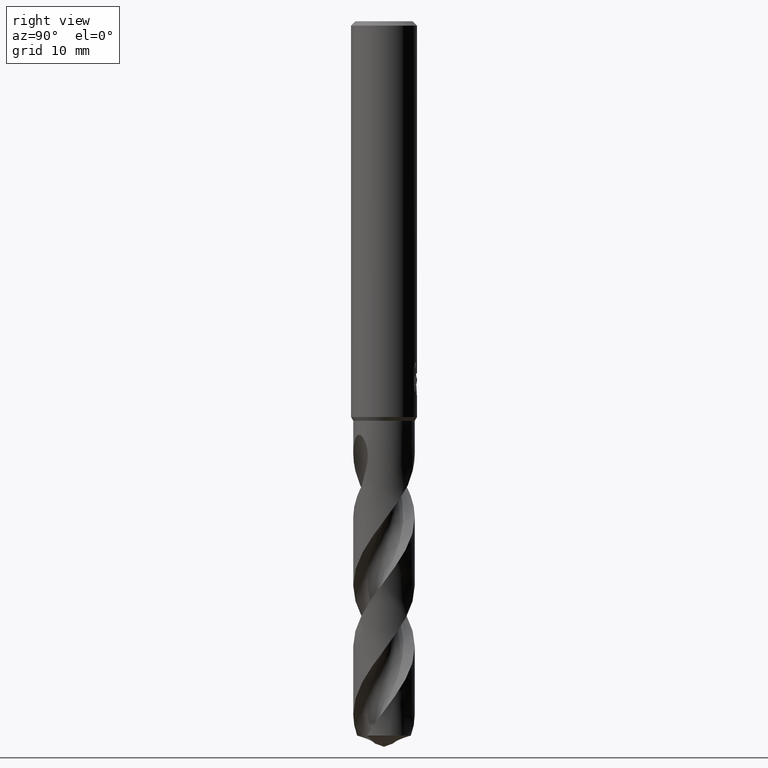
[diagram: clean part render]
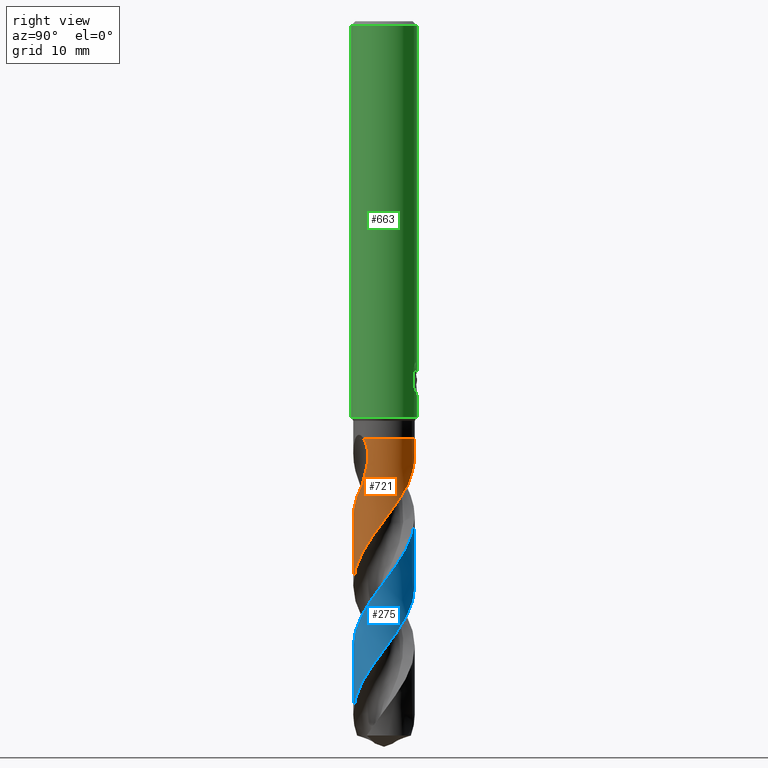
[diagram: same view with three faces highlighted in distinct colors, each labeled with its STEP entity id]
A machine part, right view with three faces highlighted in distinct colors.
Their STEP definitions:

[orange] entity #721 — the highlighted conical surface has half-angle 0 deg.
#277=EDGE_CURVE('',#655,#307,#769,.T.);
#285=EDGE_CURVE('',#645,#655,#778,.T.);
#307=VERTEX_POINT('',#803);
#323=EDGE_CURVE('',#709,#363,#820,.T.);
#329=EDGE_CURVE('',#385,#631,#826,.T.);
#363=VERTEX_POINT('',#863);
#385=VERTEX_POINT('',#886);
#399=EDGE_CURVE('',#645,#363,#900,.T.);
#563=EDGE_CURVE('',#623,#709,#1080,.T.);
#573=EDGE_CURVE('',#307,#385,#1090,.T.);
#623=VERTEX_POINT('',#1145);
#631=VERTEX_POINT('',#1153);
#645=VERTEX_POINT('',#1167);
#655=VERTEX_POINT('',#1179);
#709=VERTEX_POINT('',#1240);
#721=ADVANCED_FACE('',(#1252),#1253,.T.);
#731=EDGE_CURVE('',#623,#631,#1264,.T.);
#769=B_SPLINE_CURVE_WITH_KNOTS('',3,(#1301,#1302,#1303,#1304,#1305,#1306,#1307,#1308),.UNSPECIFIED.,.F.,.F.,(4,2,2,4),(0.0,0.523321271430247,1.25566666996262,1.95649381543812),.UNSPECIFIED.);
#778=CIRCLE('',#1318,2.7999);
#803=CARTESIAN_POINT('',(2.2781119323004,-1.62779058423102,-40.7055131651213));
#820=B_SPLINE_CURVE_WITH_KNOTS('',3,(#1708,#1709,#1710,#1711,#1712,#1713,#1714,#1715,#1716,#1717,#1718,#1719,#1720,#1721),.UNSPECIFIED.,.F.,.F.,(4,2,2,2,2,2,4),(0.0,1.37185301931194,2.12090821065314,2.79935299690903,3.5875249843323,4.5342877244059,5.02417059962225),.UNSPECIFIED.);
#826=B_SPLINE_CURVE_WITH_KNOTS('',3,(#1728,#1729,#1730,#1731,#1732,#1733,#1734,#1735,#1736,#1737,#1738,#1739,#1740,#1741,#1742,#1743,#1744,#1745,#1746,#1747,#1748,#1749,#1750,#1751,#1752,#1753,#1754,#1755,#1756,#1757,#1758,#1759,#1760,#1761,#1762,#1763,#1764,#1765,#1766,#1767,#1768,#1769,#1770,#1771,#1772,#1773,#1774,#1775,#1776,#1777,#1778,#1779,#1780,#1781,#1782,#1783,#1784,#1785,#1786,#1787,#1788,#1789,#1790,#1791,#1792,#1793,#1794,#1795,#1796,#1797,#1798,#1799,#1800,#1801,#1802,#1803,#1804,#1805,#1806,#1807,#1808,#1809,#1810,#1811,#1812,#1813,#1814,#1815,#1816,#1817),.UNSPECIFIED.,.F.,.F.,(4,2,2,2,2,2,2,2,2,2,2,2,2,2,2,2,2,2,2,2,2,2,2,2,2,2,2,2,2,2,2,2,2,2,2,2,2,2,2,2,2,2,2,2,4),(0.0,0.108605759986239,0.168578979739064,0.211160721604494,0.513169224595069,0.618894623301516,0.686603574989269,0.750219645952928,0.835518369713695,0.885920160520182,1.02793390304412,1.35076908823656,1.59321563300854,1.82495748943316,1.9034848697878,2.34429767808718,3.12889301506507,5.51420416707672,5.60708854209568,6.65786965747591,7.03557386916732,7.75399572533773,9.16973361643464,9.36560392717781,10.9338929152472,11.3227073045956,12.5126224510856,13.2591913323775,14.6203091368013,15.0089661644953,16.1840633114926,16.9317899623918,18.2450687058968,18.6334545419206,20.202687370743,20.5911594586501,21.8381506581313,22.5779268841073,23.9762839749945,24.1716940337371,25.7413264346314,26.0592280904307,27.1782367344266,27.4589535036891,28.3009484968989),.UNSPECIFIED.);
#863=CARTESIAN_POINT('',(-8.29063162622324E-013,2.79990467838806,-39.2622704252127));
#886=CARTESIAN_POINT('',(1.94615694925855,-2.01295829811473,-42.2386));
#900=LINE('',#2276,#2277);
#1080=B_SPLINE_CURVE_WITH_KNOTS('',3,(#4415,#4416,#4417,#4418,#4419,#4420,#4421,#4422,#4423,#4424,#4425,#4426,#4427,#4428,#4429,#4430,#4431,#4432,#4433,#4434,#4435,#4436,#4437,#4438,#4439,#4440,#4441,#4442,#4443,#4444,#4445,#4446,#4447,#4448,#4449,#4450,#4451,#4452,#4453,#4454,#4455,#4456,#4457,#4458,#4459,#4460,#4461,#4462,#4463,#4464,#4465,#4466,#4467,#4468,#4469,#4470,#4471,#4472,#4473,#4474,#4475,#4476,#4477,#4478,#4479,#4480,#4481,#4482,#4483,#4484,#4485,#4486,#4487,#4488,#4489,#4490,#4491,#4492,#4493,#4494,#4495,#4496),.UNSPECIFIED.,.F.,.F.,(4,2,2,2,2,2,2,2,2,2,2,2,2,2,2,2,2,2,2,2,2,2,2,2,2,2,2,2,2,2,2,2,2,2,2,2,2,2,2,2,4),(0.0,0.82844719764806,2.40433304094489,2.50812888298905,4.2889600758962,4.38901889776026,6.1355044073233,6.24199106073299,7.89689292066843,8.18196395493552,9.18325673789758,9.89188857279896,9.99353403362321,11.7622142045823,11.864292271473,13.6242220526899,13.7284016362354,15.4270558151816,15.6737218247883,16.6398246399808,17.9490243764252,19.174086388838,19.3921373965643,20.3256583062966,20.7520595840708,21.3315582488114,22.2648227459887,22.6448286538948,22.8899198354149,23.1428124050433,25.6689416338645,25.9265849206089,26.5421271602677,27.1928022753031,27.6356874115801,27.7223129161938,27.7661931254233,27.8168538156707,27.9067499735102,28.0230133345902,28.1271620960893),.UNSPECIFIED.);
#1090=B_SPLINE_CURVE_WITH_KNOTS('',3,(#4519,#4520,#4521,#4522),.UNSPECIFIED.,.F.,.F.,(4,4),(0.0,1.60907456402684),.UNSPECIFIED.);
#1145=CARTESIAN_POINT('',(-3.66239088911917E-010,-2.79994936100804,-51.3180359967202));
#1153=CARTESIAN_POINT('',(1.11412602791118E-011,-2.79992639372894,-45.1212612179477));
#1167=CARTESIAN_POINT('',(-3.41304301446412E-016,2.7999,-38.0));
#1179=CARTESIAN_POINT('',(2.12041942807812,-1.82845876601822,-38.0));
#1240=CARTESIAN_POINT('',(1.78417733937095,2.15783206083594,-42.2386));
#1252=FACE_OUTER_BOUND('',#5075,.T.);
#1253=CONICAL_SURFACE('',#5076,2.79995,3.7063278738718E-006);
#1264=LINE('',#5091,#5092);
#1301=CARTESIAN_POINT('',(2.12041942807811,-1.82845876601822,-38.0));
#1302=CARTESIAN_POINT('',(2.18959193450433,-1.74824186917387,-38.1385996943518));
#1303=CARTESIAN_POINT('',(2.24416314805751,-1.67576563862763,-38.3109060369212));
#1304=CARTESIAN_POINT('',(2.34232905736768,-1.53712938547074,-38.7856447580263));
#1305=CARTESIAN_POINT('',(2.37501983460771,-1.48282339813354,-39.1213398953808));
#1306=CARTESIAN_POINT('',(2.37977723920596,-1.47518073443545,-39.8558690061301));
#1307=CARTESIAN_POINT('',(2.35633024084201,-1.5183203118426,-40.2606386340252));
#1308=CARTESIAN_POINT('',(2.2781119323004,-1.62779058423102,-40.7055131651213));
#1318=AXIS2_PLACEMENT_3D('',#5123,#5124,#5125);
#1708=CARTESIAN_POINT('',(1.78417733937095,2.15783206083595,-42.2386));
#1709=CARTESIAN_POINT('',(1.59948434261327,2.31054135827168,-41.8491422554052));
#1710=CARTESIAN_POINT('',(1.3871265446196,2.44629140471077,-41.4860421016674));
#1711=CARTESIAN_POINT('',(1.01683595365437,2.61268073053257,-40.8794642227573));
#1712=CARTESIAN_POINT('',(0.883588159176526,2.66054451555173,-40.6660514644371));
#1713=CARTESIAN_POINT('',(0.625638243637216,2.73207777887913,-40.2529443056521));
#1714=CARTESIAN_POINT('',(0.502087687644772,2.75735017466428,-40.0551749036506));
#1715=CARTESIAN_POINT('',(0.234655035892083,2.79382365676095,-39.6289356152364));
#1716=CARTESIAN_POINT('',(0.0885386572846875,2.80238646756106,-39.3971290606829));
#1717=CARTESIAN_POINT('',(-0.235947246921476,2.79556015018505,-38.9012226234));
#1718=CARTESIAN_POINT('',(-0.428333702507044,2.77444892399842,-38.6190492548122));
#1719=CARTESIAN_POINT('',(-0.729908568818492,2.70514543693781,-38.2408258814128));
#1720=CARTESIAN_POINT('',(-0.84082868579413,2.67348141227031,-38.1127745381227));
#1721=CARTESIAN_POINT('',(-0.956145090118627,2.63158252324377,-38.0));
#1728=CARTESIAN_POINT('',(1.94615694925855,-2.01295829811473,-42.2386));
#1729=CARTESIAN_POINT('',(1.93125081806019,-2.02736991250831,-42.2682764491579));
#1730=CARTESIAN_POINT('',(1.91614771772562,-2.04165217981694,-42.2979368400302));
#1731=CARTESIAN_POINT('',(1.89233672938128,-2.06366784394802,-42.3439132367299));
#1732=CARTESIAN_POINT('',(1.88380137076256,-2.07146262777551,-42.3602428760747));
#1733=CARTESIAN_POINT('',(1.86907338375561,-2.08474544810152,-42.3881425319075));
#1734=CARTESIAN_POINT('',(1.86292352669241,-2.09024296271859,-42.3997113419267));
#1735=CARTESIAN_POINT('',(1.81283408091538,-2.13462076057181,-42.4932582593985));
#1736=CARTESIAN_POINT('',(1.76788768296892,-2.17203929272721,-42.5729371389503));
#1737=CARTESIAN_POINT('',(1.70356265692424,-2.22212923754118,-42.6814739421968));
#1738=CARTESIAN_POINT('',(1.6866866764584,-2.2349675733049,-42.7094854465578));
#1739=CARTESIAN_POINT('',(1.65862023257109,-2.25581558107512,-42.7554138334336));
#1740=CARTESIAN_POINT('',(1.64758611648696,-2.26388753659054,-42.7733083605951));
#1741=CARTESIAN_POINT('',(1.62602419659507,-2.27941896414609,-42.8080033396172));
#1742=CARTESIAN_POINT('',(1.61551721670922,-2.28687793805828,-42.824786683237));
#1743=CARTESIAN_POINT('',(1.59077206953152,-2.30418844866599,-42.8640716985913));
#1744=CARTESIAN_POINT('',(1.57650170468024,-2.31397566153491,-42.8865424259406));
#1745=CARTESIAN_POINT('',(1.55365097637773,-2.32933797559429,-42.9223164152684));
#1746=CARTESIAN_POINT('',(1.54513632214327,-2.334994773443,-42.9356013555506));
#1747=CARTESIAN_POINT('',(1.51252842888022,-2.35640193515515,-42.9863509401571));
#1748=CARTESIAN_POINT('',(1.48852672606142,-2.37163610381895,-43.0235194279788));
#1749=CARTESIAN_POINT('',(1.40836919371469,-2.42080735754814,-43.1474781941695));
#1750=CARTESIAN_POINT('',(1.35179861928754,-2.45282744293773,-43.2343701104104));
#1751=CARTESIAN_POINT('',(1.25149839991867,-2.50512619686078,-43.3862522387046));
#1752=CARTESIAN_POINT('',(1.20792459292407,-2.52642465666761,-43.4515483187711));
#1753=CARTESIAN_POINT('',(1.12168664080901,-2.56583751229699,-43.5790759546722));
#1754=CARTESIAN_POINT('',(1.07899678872821,-2.5840831546514,-43.6414210989935));
#1755=CARTESIAN_POINT('',(1.02115037672657,-2.60711700280672,-43.7247205252499));
#1756=CARTESIAN_POINT('',(1.00644959524324,-2.61282734338723,-43.7457895332062));
#1757=CARTESIAN_POINT('',(0.909002814661639,-2.64973560215954,-43.8849837500249));
#1758=CARTESIAN_POINT('',(0.824801880823853,-2.67714558883862,-44.0028520185838));
#1759=CARTESIAN_POINT('',(0.58736733484061,-2.7421550852057,-44.3310560038336));
#1760=CARTESIAN_POINT('',(0.432301337753437,-2.77081221551638,-44.5413234848005));
#1761=CARTESIAN_POINT('',(-0.199688037521175,-2.83338947550752,-45.3913537431293));
#1762=CARTESIAN_POINT('',(-0.679749212231005,-2.75797585835273,-46.0194105246137));
#1763=CARTESIAN_POINT('',(-1.13542726907183,-2.55944763849282,-46.6834597726902));
#1764=CARTESIAN_POINT('',(-1.15242881018861,-2.55183768829331,-46.7083433352606));
#1765=CARTESIAN_POINT('',(-1.36083062743651,-2.45604883217945,-47.014873038757));
#1766=CARTESIAN_POINT('',(-1.5418132648444,-2.34667492492432,-47.2962760986244));
#1767=CARTESIAN_POINT('',(-1.76883220591311,-2.17177696534151,-47.6791718317615));
#1768=CARTESIAN_POINT('',(-1.82696917452832,-2.12310466772125,-47.7803394456276));
#1769=CARTESIAN_POINT('',(-1.98978269401807,-1.97514688144761,-48.0740728479555));
#1770=CARTESIAN_POINT('',(-2.08877111872598,-1.87014141333693,-48.2661924021915));
#1771=CARTESIAN_POINT('',(-2.3573949068064,-1.53717184463461,-48.8385579643068));
#1772=CARTESIAN_POINT('',(-2.50109602539604,-1.29032313474208,-49.2159624170112));
#1773=CARTESIAN_POINT('',(-2.61961907730003,-0.989354922738243,-49.6478745346782));
#1774=CARTESIAN_POINT('',(-2.63324692337205,-0.952490222065736,-49.7003493509724));
#1775=CARTESIAN_POINT('',(-2.7489533925757,-0.618012820678946,-50.1733704799265));
#1776=CARTESIAN_POINT('',(-2.80101290869379,-0.305253344627107,-50.5917414706985));
#1777=CARTESIAN_POINT('',(-2.79966361017892,0.0876944981345158,-51.1164180983973));
#1778=CARTESIAN_POINT('',(-2.79613139614853,0.16567230833471,-51.2205786649217));
#1779=CARTESIAN_POINT('',(-2.76860491883403,0.481174608170883,-51.6440978008402));
#1780=CARTESIAN_POINT('',(-2.71751679723197,0.715491293517679,-51.9624654754801));
#1781=CARTESIAN_POINT('',(-2.58689195894508,1.08176064787054,-52.4817527886075));
#1782=CARTESIAN_POINT('',(-2.52530325011825,1.21861407453687,-52.6814045395284));
#1783=CARTESIAN_POINT('',(-2.3214601636371,1.58906944027969,-53.2469942737192));
#1784=CARTESIAN_POINT('',(-2.15543777017483,1.80792490864795,-53.6104043991302));
#1785=CARTESIAN_POINT('',(-1.90448432484744,2.05397349710664,-54.0796582498707));
#1786=CARTESIAN_POINT('',(-1.84651241580459,2.10624105578348,-54.1838053408001));
#1787=CARTESIAN_POINT('',(-1.60486733912856,2.30646875827704,-54.6034481489829));
#1788=CARTESIAN_POINT('',(-1.40488969744318,2.43347412227399,-54.9180188219352));
#1789=CARTESIAN_POINT('',(-1.0553398819268,2.59781065545009,-55.4338375911496));
#1790=CARTESIAN_POINT('',(-0.914564792450323,2.65064087148312,-55.6338455853196));
#1791=CARTESIAN_POINT('',(-0.516889947466411,2.76443692052086,-56.1870996014998));
#1792=CARTESIAN_POINT('',(-0.25434365315802,2.80085156392006,-56.5381059955158));
#1793=CARTESIAN_POINT('',(0.0875803564880153,2.79968824790019,-56.994633507643));
#1794=CARTESIAN_POINT('',(0.165541065081788,2.79616073538563,-57.0987185243117));
#1795=CARTESIAN_POINT('',(0.557151155965212,2.7620141651242,-57.6241984671704));
#1796=CARTESIAN_POINT('',(0.864413657517808,2.68181217500129,-58.0431093404044));
#1797=CARTESIAN_POINT('',(1.22304449069067,2.51994544833901,-58.5684744031795));
#1798=CARTESIAN_POINT('',(1.29279323925915,2.48488208698094,-58.6726671074494));
#1799=CARTESIAN_POINT('',(1.5797791343876,2.32526743126871,-59.11184655446));
#1800=CARTESIAN_POINT('',(1.7814268756299,2.17468066846359,-59.4455705175799));
#1801=CARTESIAN_POINT('',(2.06657795580731,1.89506340622429,-59.9788292196181));
#1802=CARTESIAN_POINT('',(2.1642248694752,1.78272073647999,-60.1769810664135));
#1803=CARTESIAN_POINT('',(2.41923624740637,1.43737153594737,-60.7513001648936));
#1804=CARTESIAN_POINT('',(2.55120089405299,1.18756302033221,-61.1245453993787));
#1805=CARTESIAN_POINT('',(2.6567141779958,0.885065851161436,-61.5523343916189));
#1806=CARTESIAN_POINT('',(2.66886386388126,0.847724464733746,-61.6047733343307));
#1807=CARTESIAN_POINT('',(2.7714637906437,0.508297083318045,-62.0787667613922));
#1808=CARTESIAN_POINT('',(2.81110229025248,0.192999514721657,-62.4980597787502));
#1809=CARTESIAN_POINT('',(2.79452940475913,-0.186144519124917,-63.0048590759393));
#1810=CARTESIAN_POINT('',(2.78955384004183,-0.249860601663239,-63.0901726929371));
#1811=CARTESIAN_POINT('',(2.7572457780327,-0.53676735897579,-63.4761666036213));
#1812=CARTESIAN_POINT('',(2.70524604557844,-0.756491011453212,-63.7760608789497));
#1813=CARTESIAN_POINT('',(2.60794481354303,-1.02068347460402,-64.1519079305011));
#1814=CARTESIAN_POINT('',(2.58683157179571,-1.07306833823165,-64.2272519831666));
#1815=CARTESIAN_POINT('',(2.49610700191935,-1.27989444728559,-64.5286950923745));
#1816=CARTESIAN_POINT('',(2.41421946756854,-1.42831591045597,-64.7544948822612));
#1817=CARTESIAN_POINT('',(2.31958670581291,-1.56828489574313,-64.9808833440546));
#2276=CARTESIAN_POINT('',(-3.41310424478181E-016,2.79995,-51.4904416720273));
#2277=VECTOR('',#5236,1.0);
#4415=CARTESIAN_POINT('',(1.36450386993745,2.44502130643593,-64.9808833440546));
#4416=CARTESIAN_POINT('',(1.21970786017105,2.52582731966721,-64.7600603145281));
#4417=CARTESIAN_POINT('',(1.06853234266741,2.59330988455934,-64.5375945314893));
#4418=CARTESIAN_POINT('',(0.617496854146465,2.74890330405951,-63.896893678866));
#4419=CARTESIAN_POINT('',(0.307112844983685,2.80058885098478,-63.4862740921443));
#4420=CARTESIAN_POINT('',(-0.0259539976526238,2.79994816056946,-63.0391185107948));
#4421=CARTESIAN_POINT('',(-0.0465125635478581,2.79968219142633,-63.0114846940945));
#4422=CARTESIAN_POINT('',(-0.420575750801285,2.79071168873991,-62.509216789588));
#4423=CARTESIAN_POINT('',(-0.76876079338975,2.71541793165761,-62.046806699951));
#4424=CARTESIAN_POINT('',(-1.11189492822252,2.56982714678252,-61.5458359399174));
#4425=CARTESIAN_POINT('',(-1.13006284129046,2.56189031527897,-61.5191696707768));
#4426=CARTESIAN_POINT('',(-1.46494686088092,2.4113176806216,-61.0259422959183));
#4427=CARTESIAN_POINT('',(-1.75213299079377,2.211400562831,-60.5714101020313));
#4428=CARTESIAN_POINT('',(-2.01033084827612,1.94908068711884,-60.0770337065442));
#4429=CARTESIAN_POINT('',(-2.02497152494986,1.9338653093843,-60.048630514886));
#4430=CARTESIAN_POINT('',(-2.26460635664079,1.67911450362472,-59.5787637213351));
#4431=CARTESIAN_POINT('',(-2.44583726444223,1.40208121934006,-59.1474113542472));
#4432=CARTESIAN_POINT('',(-2.59719976366846,1.04767763897077,-58.6308709001858));
#4433=CARTESIAN_POINT('',(-2.6178147216161,0.995040764144163,-58.5548166960964));
#4434=CARTESIAN_POINT('',(-2.70358708851136,0.754900066955263,-58.2125856108953));
#4435=CARTESIAN_POINT('',(-2.75042037316798,0.56105038671771,-57.9485526227156));
#4436=CARTESIAN_POINT('',(-2.79459967130632,0.223516144802119,-57.4949534714838));
#4437=CARTESIAN_POINT('',(-2.8022616399549,0.0828264748217802,-57.3075695918246));
#4438=CARTESIAN_POINT('',(-2.79896794693203,-0.077587419195127,-57.0919718154867));
#4439=CARTESIAN_POINT('',(-2.79833857916506,-0.0976943776818312,-57.0649159021308));
#4440=CARTESIAN_POINT('',(-2.78270566618217,-0.468714802026347,-56.5661247848629));
#4441=CARTESIAN_POINT('',(-2.70211098428901,-0.813266597943382,-56.1067119166041));
#4442=CARTESIAN_POINT('',(-2.55188710433799,-1.15242672187694,-55.6082958394841));
#4443=CARTESIAN_POINT('',(-2.54349667129628,-1.1708292412426,-55.5810933556071));
#4444=CARTESIAN_POINT('',(-2.38633309896041,-1.50583389005031,-55.0840507930331));
#4445=CARTESIAN_POINT('',(-2.1799702833805,-1.79152129564199,-54.6263867907842));
#4446=CARTESIAN_POINT('',(-1.9114586531403,-2.04610073234026,-54.1293093668731));
#4447=CARTESIAN_POINT('',(-1.89631710377791,-2.060141729456,-54.1015327296202));
#4448=CARTESIAN_POINT('',(-1.63102810650175,-2.30073448900123,-53.6204262761237));
#4449=CARTESIAN_POINT('',(-1.34231907294358,-2.48027172375589,-53.1780554353717));
#4450=CARTESIAN_POINT('',(-0.982978360259449,-2.62219331119517,-52.6597244336869));
#4451=CARTESIAN_POINT('',(-0.937025010887945,-2.63896319841193,-52.5939032222754));
#4452=CARTESIAN_POINT('',(-0.70868102690687,-2.71556982256573,-52.2707064769147));
#4453=CARTESIAN_POINT('',(-0.520641730108792,-2.75785942559287,-52.0153863415776));
#4454=CARTESIAN_POINT('',(-0.070003690213796,-2.811226566136,-51.4107488651196));
#4455=CARTESIAN_POINT('',(0.192050476577413,-2.80549856250444,-51.0612887776145));
#4456=CARTESIAN_POINT('',(0.690262314286891,-2.7244762451683,-50.3872927517319));
#4457=CARTESIAN_POINT('',(0.924558136574349,-2.65405467381097,-50.0654513800578));
#4458=CARTESIAN_POINT('',(1.18588122904773,-2.53677773101927,-49.6810445030026));
#4459=CARTESIAN_POINT('',(1.2248940253233,-2.51817217658335,-49.6228935111827));
#4460=CARTESIAN_POINT('',(1.42898009988146,-2.41496615315635,-49.3159850422472));
#4461=CARTESIAN_POINT('',(1.58603238371743,-2.31491696147551,-49.0691473644111));
#4462=CARTESIAN_POINT('',(1.79913076132561,-2.14709665679575,-48.7077437246472));
#4463=CARTESIAN_POINT('',(1.86345266584207,-2.09150904709825,-48.5945567874813));
#4464=CARTESIAN_POINT('',(2.00886523980891,-1.95382301319792,-48.3269544044226));
#4465=CARTESIAN_POINT('',(2.08748464590717,-1.86956130800148,-48.172082149308));
#4466=CARTESIAN_POINT('',(2.27825165755313,-1.63812365655449,-47.7698579434291));
#4467=CARTESIAN_POINT('',(2.38172509269441,-1.48376078541043,-47.5236248694334));
#4468=CARTESIAN_POINT('',(2.50497617875017,-1.25317536470829,-47.175397892624));
#4469=CARTESIAN_POINT('',(2.53789418303696,-1.18508558990767,-47.0747237063296));
#4470=CARTESIAN_POINT('',(2.58741323397283,-1.07111690408828,-46.9088325935933));
#4471=CARTESIAN_POINT('',(2.605637618527,-1.02598214101724,-46.8437850379621));
#4472=CARTESIAN_POINT('',(2.64022421570235,-0.933462872850537,-46.7114625580776));
#4473=CARTESIAN_POINT('',(2.65650603831768,-0.886064767069029,-46.6441595859856));
#4474=CARTESIAN_POINT('',(2.82150518216511,-0.360173633543812,-45.9055349984942));
#4475=CARTESIAN_POINT('',(2.8401832292768,0.148730144882881,-45.2532149892258));
#4476=CARTESIAN_POINT('',(2.71544680838684,0.684482123284127,-44.5143029915075));
#4477=CARTESIAN_POINT('',(2.70261443583878,0.733505445004968,-44.4459256848563));
#4478=CARTESIAN_POINT('',(2.65450512261697,0.898835369978098,-44.2145427199936));
#4479=CARTESIAN_POINT('',(2.61281395523722,1.01387842189225,-44.0519638303183));
#4480=CARTESIAN_POINT('',(2.51082539434075,1.24590429432236,-43.7191856343702));
#4481=CARTESIAN_POINT('',(2.45085559804661,1.36005187057445,-43.5539594203143));
#4482=CARTESIAN_POINT('',(2.33617070428715,1.54585749060526,-43.2544988165215));
#4483=CARTESIAN_POINT('',(2.28763746508656,1.61651631288578,-43.1324632323109));
#4484=CARTESIAN_POINT('',(2.2281078295433,1.69568319711846,-42.9826710743932));
#4485=CARTESIAN_POINT('',(2.21312255820558,1.71549443563394,-42.9443703383623));
#4486=CARTESIAN_POINT('',(2.17942643030845,1.75783175023451,-42.8670673631354));
#4487=CARTESIAN_POINT('',(2.1677598079443,1.77220582282261,-42.8413299786546));
#4488=CARTESIAN_POINT('',(2.14183413329042,1.80348547155219,-42.7863624240456));
#4489=CARTESIAN_POINT('',(2.12747751389952,1.82040949570789,-42.7572590093891));
#4490=CARTESIAN_POINT('',(2.08625493822996,1.86780388318206,-42.6773826768857));
#4491=CARTESIAN_POINT('',(2.05841262869017,1.89850027872921,-42.6274782433902));
#4492=CARTESIAN_POINT('',(1.99080965297492,1.96958657173877,-42.5153012814733));
#4493=CARTESIAN_POINT('',(1.95017279073446,2.00994168949892,-42.4540690376769));
#4494=CARTESIAN_POINT('',(1.86796142194128,2.08639988969252,-42.3410560346244));
#4495=CARTESIAN_POINT('',(1.82711334291991,2.12233118904273,-42.28921305376));
#4496=CARTESIAN_POINT('',(1.78417733937095,2.15783206083594,-42.2386));
#4519=CARTESIAN_POINT('',(2.27811193235302,-1.62779058415738,-40.7055131651502));
#4520=CARTESIAN_POINT('',(2.18784834306459,-1.75411880445002,-41.2189075272645));
#4521=CARTESIAN_POINT('',(2.07905761816469,-1.88446543119522,-41.7353565540587));
#4522=CARTESIAN_POINT('',(1.94615694925855,-2.01295829811473,-42.2386));
#5075=EDGE_LOOP('',(#5622,#5623,#5624,#5625,#5626,#5627,#5628,#5629));
#5076=AXIS2_PLACEMENT_3D('',#5630,#5631,#5632);
#5091=CARTESIAN_POINT('',(3.44456887598812E-016,-2.79995,-51.4904416720273));
#5092=VECTOR('',#5660,1.0);
#5123=CARTESIAN_POINT('',(0.0,0.0,-38.0));
#5124=DIRECTION('',(0.0,0.0,-1.0));
#5125=DIRECTION('',(0.0,1.0,0.0));
#5236=DIRECTION('',(-4.538792663682E-022,3.70632787386332E-006,-0.999999999993132));
#5622=ORIENTED_EDGE('',*,*,#399,.F.);
#5623=ORIENTED_EDGE('',*,*,#285,.T.);
#5624=ORIENTED_EDGE('',*,*,#277,.T.);
#5625=ORIENTED_EDGE('',*,*,#573,.T.);
#5626=ORIENTED_EDGE('',*,*,#329,.T.);
#5627=ORIENTED_EDGE('',*,*,#731,.F.);
#5628=ORIENTED_EDGE('',*,*,#563,.T.);
#5629=ORIENTED_EDGE('',*,*,#323,.T.);
#5630=CARTESIAN_POINT('',(0.0,0.0,-51.4904416720273));
#5631=DIRECTION('',(0.0,-0.0,-1.0));
#5632=DIRECTION('',(0.0,1.0,0.0));
#5660=DIRECTION('',(-4.538792663682E-022,3.70632787386332E-006,0.999999999993132));

[blue] entity #275 — the highlighted conical surface has half-angle 0 deg.
#275=ADVANCED_FACE('',(#766),#767,.T.);
#281=VERTEX_POINT('',#774);
#295=EDGE_CURVE('',#281,#459,#788,.T.);
#437=EDGE_CURVE('',#281,#627,#943,.T.);
#459=VERTEX_POINT('',#965);
#515=EDGE_CURVE('',#729,#459,#1026,.T.);
#533=EDGE_CURVE('',#729,#627,#1047,.T.);
#627=VERTEX_POINT('',#1149);
#729=VERTEX_POINT('',#1262);
#766=FACE_OUTER_BOUND('',#1297,.T.);
#767=CONICAL_SURFACE('',#1298,2.79995,3.7063278738718E-006);
#774=CARTESIAN_POINT('',(-1.11405924105736E-011,2.79992639372893,-45.1212612179477));
#788=B_SPLINE_CURVE_WITH_KNOTS('',3,(#1351,#1352,#1353,#1354,#1355,#1356,#1357,#1358,#1359,#1360,#1361,#1362,#1363,#1364,#1365,#1366,#1367,#1368,#1369,#1370,#1371,#1372,#1373,#1374,#1375,#1376,#1377,#1378,#1379,#1380,#1381,#1382,#1383,#1384,#1385,#1386,#1387,#1388,#1389,#1390,#1391,#1392,#1393,#1394,#1395,#1396,#1397,#1398,#1399,#1400,#1401,#1402,#1403,#1404,#1405,#1406,#1407,#1408,#1409,#1410,#1411,#1412,#1413,#1414,#1415,#1416,#1417,#1418,#1419,#1420,#1421,#1422,#1423,#1424,#1425,#1426,#1427,#1428,#1429,#1430,#1431,#1432,#1433,#1434,#1435,#1436,#1437,#1438,#1439,#1440),.UNSPECIFIED.,.F.,.F.,(4,2,2,2,2,2,2,2,2,2,2,2,2,2,2,2,2,2,2,2,2,2,2,2,2,2,2,2,2,2,2,2,2,2,2,2,2,2,2,2,2,2,2,2,4),(0.0,0.108605760004447,0.168578980280047,0.211160721807118,0.513169224556507,0.618894623191536,0.686603574797471,0.750219645698619,0.835518369393899,0.885920160130817,1.02793390256564,1.35076908734427,1.59321563181864,1.82495748742973,1.90348486748688,2.34429768013047,3.12889302049321,5.51420413301005,5.60708850813938,6.65786959502904,7.03557380670608,7.75399572483206,9.16973362564617,9.36560393615003,10.9338929255601,11.322707314559,12.5126224938685,13.2591913710198,14.6203092908212,15.0089663184905,16.1840637494417,16.9317903734201,18.2450699757381,18.6334558133712,20.2026887796293,20.5911608703438,21.8381546925348,22.5779306201104,23.9762869793251,24.1716970250906,25.7413298265252,26.0592310366389,27.1782382659125,27.4589546832211,28.3009486202348),.UNSPECIFIED.);
#943=LINE('',#2434,#2435);
#965=CARTESIAN_POINT('',(-6.48894698948705E-015,-2.79996996694075,-56.8776986631341));
#1026=LINE('',#3522,#3523);
#1047=B_SPLINE_CURVE_WITH_KNOTS('',3,(#4136,#4137,#4138,#4139,#4140,#4141,#4142,#4143,#4144,#4145,#4146,#4147,#4148,#4149,#4150,#4151,#4152,#4153,#4154,#4155,#4156,#4157,#4158,#4159,#4160,#4161,#4162,#4163,#4164,#4165,#4166,#4167,#4168,#4169,#4170,#4171,#4172,#4173,#4174,#4175,#4176,#4177,#4178,#4179,#4180,#4181,#4182,#4183,#4184,#4185,#4186,#4187,#4188,#4189,#4190,#4191,#4192,#4193,#4194,#4195,#4196,#4197,#4198,#4199,#4200,#4201,#4202,#4203,#4204,#4205,#4206,#4207,#4208,#4209,#4210,#4211,#4212,#4213,#4214,#4215,#4216,#4217),.UNSPECIFIED.,.F.,.F.,(4,2,2,2,2,2,2,2,2,2,2,2,2,2,2,2,2,2,2,2,2,2,2,2,2,2,2,2,2,2,2,2,2,2,2,2,2,2,2,2,4),(0.0,0.828447193633359,2.40433304334432,2.50812888487967,4.28896008428374,4.38901890415174,6.13550448830147,6.24199112004755,7.89689341745216,8.18196400165651,9.1832569344558,9.89188968872681,9.99353486681433,11.7622178144609,11.8642948955029,13.6242337809761,13.7284099285491,15.427152296125,15.6737493806012,16.6394471076661,17.9483732891006,19.1525788900624,19.3826451429969,20.2952870458919,20.8268658955151,21.5793464534772,22.74314499625,23.2203716628519,25.7236663457822,25.9751180164352,26.5931160045306,26.884641429681,27.2750183289343,27.4653219904547,27.6515597604063,27.6875524948512,27.705258287634,27.7254156991376,27.7604341110085,27.8052265171869,27.8513857962416),.UNSPECIFIED.);
#1149=CARTESIAN_POINT('',(3.67450343966507E-010,2.79994936100804,-51.3180359967235));
#1262=CARTESIAN_POINT('',(-2.93623190450879E-015,-2.79999293232475,-63.0739621307751));
#1297=EDGE_LOOP('',(#5108,#5109,#5110,#5111));
#1298=AXIS2_PLACEMENT_3D('',#5112,#5113,#5114);
#1351=CARTESIAN_POINT('',(-1.94615694925855,2.01295829811473,-42.2386));
#1352=CARTESIAN_POINT('',(-1.93125081805769,2.02736991251073,-42.2682764491629));
#1353=CARTESIAN_POINT('',(-1.91614771772628,2.04165217981621,-42.2979368400286));
#1354=CARTESIAN_POINT('',(-1.89233672932069,2.06366784400411,-42.3439132368469));
#1355=CARTESIAN_POINT('',(-1.88380137062588,2.07146262790033,-42.3602428763362));
#1356=CARTESIAN_POINT('',(-1.86907338359419,2.08474544824596,-42.3881425322115));
#1357=CARTESIAN_POINT('',(-1.86292352657336,2.09024296282448,-42.3997113421497));
#1358=CARTESIAN_POINT('',(-1.81283408084075,2.13462076063515,-42.4932582595332));
#1359=CARTESIAN_POINT('',(-1.76788768291115,2.17203929277285,-42.5729371390487));
#1360=CARTESIAN_POINT('',(-1.70356265691662,2.22212923754687,-42.6814739422093));
#1361=CARTESIAN_POINT('',(-1.68668667646004,2.23496757330381,-42.7094854465553));
#1362=CARTESIAN_POINT('',(-1.65862023255928,2.25581558108383,-42.7554138334528));
#1363=CARTESIAN_POINT('',(-1.64758611647829,2.26388753659684,-42.7733083606091));
#1364=CARTESIAN_POINT('',(-1.62602419658502,2.27941896415327,-42.8080033396333));
#1365=CARTESIAN_POINT('',(-1.61551721670081,2.28687793806421,-42.8247866832504));
#1366=CARTESIAN_POINT('',(-1.59077206951828,2.30418844867516,-42.8640716986123));
#1367=CARTESIAN_POINT('',(-1.57650170466485,2.31397566154539,-42.8865424259648));
#1368=CARTESIAN_POINT('',(-1.55365097636814,2.32933797560065,-42.9223164152833));
#1369=CARTESIAN_POINT('',(-1.54513632213486,2.33499477344858,-42.9356013555637));
#1370=CARTESIAN_POINT('',(-1.51252842885814,2.35640193516955,-42.9863509401914));
#1371=CARTESIAN_POINT('',(-1.48852672602696,2.37163610384076,-43.0235194280323));
#1372=CARTESIAN_POINT('',(-1.4083691936735,2.42080735757188,-43.1474781942329));
#1373=CARTESIAN_POINT('',(-1.35179861925857,2.45282744295369,-43.2343701104547));
#1374=CARTESIAN_POINT('',(-1.25149839988602,2.50512619687713,-43.3862522387537));
#1375=CARTESIAN_POINT('',(-1.2079245928914,2.52642465668313,-43.4515483188198));
#1376=CARTESIAN_POINT('',(-1.12168664088147,2.56583751226331,-43.5790759545647));
#1377=CARTESIAN_POINT('',(-1.0789967889035,2.58408315457618,-43.6414210987373));
#1378=CARTESIAN_POINT('',(-1.02115037704914,2.60711700268011,-43.7247205247866));
#1379=CARTESIAN_POINT('',(-1.00644959560648,2.61282734324706,-43.745789532686));
#1380=CARTESIAN_POINT('',(-0.909002814171224,2.64973560235991,-43.8849837507333));
#1381=CARTESIAN_POINT('',(-0.824801879401821,2.67714558930873,-44.0028520205768));
#1382=CARTESIAN_POINT('',(-0.587367331611296,2.74215508594615,-44.3310560082487));
#1383=CARTESIAN_POINT('',(-0.432301333646686,2.7708122162051,-44.5413234903648));
#1384=CARTESIAN_POINT('',(0.199688035213502,2.83338947442143,-45.3913537399017));
#1385=CARTESIAN_POINT('',(0.679749202414795,2.75797585948713,-46.0194105119934));
#1386=CARTESIAN_POINT('',(1.13542725369896,2.55944764531277,-46.683459750222));
#1387=CARTESIAN_POINT('',(1.15242879490138,2.55183769519735,-46.7083433128477));
#1388=CARTESIAN_POINT('',(1.36083060779124,2.45604884259491,-47.014873009042));
#1389=CARTESIAN_POINT('',(1.54181324142944,2.34667493981328,-47.2962760616601));
#1390=CARTESIAN_POINT('',(1.76883218025977,2.17177698623749,-47.6791717875853));
#1391=CARTESIAN_POINT('',(1.8269691495057,2.12310468925614,-47.7803394015616));
#1392=CARTESIAN_POINT('',(1.98978268010488,1.97514689638247,-48.074072820805));
#1393=CARTESIAN_POINT('',(2.08877111400664,1.87014141957611,-48.2661923917276));
#1394=CARTESIAN_POINT('',(2.3573949108279,1.53717183888251,-48.83855797368));
#1395=CARTESIAN_POINT('',(2.50109602985258,1.29032312659872,-49.215962429299));
#1396=CARTESIAN_POINT('',(2.61961908134588,0.989354912025539,-49.6478745499686));
#1397=CARTESIAN_POINT('',(2.63324692726429,0.952490211304975,-49.7003493662588));
#1398=CARTESIAN_POINT('',(2.74895339528469,0.618012808918792,-50.1733704960102));
#1399=CARTESIAN_POINT('',(2.80101291012928,0.30525333205857,-50.5917414874674));
#1400=CARTESIAN_POINT('',(2.79966360976717,-0.08769451128923,-51.1164181159651));
#1401=CARTESIAN_POINT('',(2.79613139536984,-0.16567232147941,-51.2205786825152));
#1402=CARTESIAN_POINT('',(2.76860491597991,-0.481174627970575,-51.644097827576));
#1403=CARTESIAN_POINT('',(2.7175167909561,-0.715491319637805,-51.962465511177));
#1404=CARTESIAN_POINT('',(2.58689194621174,-1.08176067822727,-52.4817528324844));
#1405=CARTESIAN_POINT('',(2.52530323607619,-1.21861410355044,-52.6814045825596));
#1406=CARTESIAN_POINT('',(2.32146013448994,-1.58906948688001,-53.2469943471722));
#1407=CARTESIAN_POINT('',(2.15543772147479,-1.80792497024844,-53.6104045031087));
#1408=CARTESIAN_POINT('',(1.90448425049123,-2.05397356605414,-54.0796583852204));
#1409=CARTESIAN_POINT('',(1.84651233951947,-2.1062411226631,-54.1838054763385));
#1410=CARTESIAN_POINT('',(1.60486721162787,-2.30646885282947,-54.6034483611465));
#1411=CARTESIAN_POINT('',(1.40488951262752,-2.43347423453283,-54.9180191093192));
#1412=CARTESIAN_POINT('',(1.0553396339873,-2.59781075587257,-55.4338379476985));
#1413=CARTESIAN_POINT('',(0.914564544506582,-2.65064095672731,-55.6338459352904));
#1414=CARTESIAN_POINT('',(0.516889528615706,-2.76443701527055,-56.1871001753867));
#1415=CARTESIAN_POINT('',(0.254343054244459,-2.80085163457582,-56.5381067948886));
#1416=CARTESIAN_POINT('',(-0.0875811280709218,-2.79968822377676,-56.994634537922));
#1417=CARTESIAN_POINT('',(-0.165541835826145,-2.79616068976196,-57.0987195553261));
#1418=CARTESIAN_POINT('',(-0.557151944025006,-2.76201400921013,-57.6241995375731));
#1419=CARTESIAN_POINT('',(-0.864414448701666,-2.68181192319696,-58.0431104410242));
#1420=CARTESIAN_POINT('',(-1.2230452579331,-2.51994507598074,-58.5684755415848));
#1421=CARTESIAN_POINT('',(-1.29279399619305,-2.48488169318629,-58.6726682476336));
#1422=CARTESIAN_POINT('',(-1.57978030200746,-2.32526669457405,-59.1118483995981));
#1423=CARTESIAN_POINT('',(-1.7814283824982,-2.1746794948466,-59.4455730526092));
#1424=CARTESIAN_POINT('',(-2.06657955394433,-1.89506165874734,-59.9788323761442));
#1425=CARTESIAN_POINT('',(-2.16422633417206,-1.78271895326494,-60.1769841486007));
#1426=CARTESIAN_POINT('',(-2.41923731055569,-1.43736971746096,-60.7513029684923));
#1427=CARTESIAN_POINT('',(-2.55120170556725,-1.18756124147308,-61.124547996985));
#1428=CARTESIAN_POINT('',(-2.65671474495641,-0.885064149199732,-61.5523367870657));
#1429=CARTESIAN_POINT('',(-2.6688644059537,-0.847722758003949,-61.6047757269571));
#1430=CARTESIAN_POINT('',(-2.77146413596326,-0.508295245377818,-62.0787692535746));
#1431=CARTESIAN_POINT('',(-2.81110243161396,-0.192997576695025,-62.4980623550008));
#1432=CARTESIAN_POINT('',(-2.79452927552078,0.18614642824109,-63.0048616307377));
#1433=CARTESIAN_POINT('',(-2.78955367539448,0.24986241660511,-63.0901751278987));
#1434=CARTESIAN_POINT('',(-2.75724547878158,0.536768774499111,-63.476168531934));
#1435=CARTESIAN_POINT('',(-2.70524571225619,0.756492117337046,-63.7760624188383));
#1436=CARTESIAN_POINT('',(-2.60794452365822,1.02068421131446,-64.151908986936));
#1437=CARTESIAN_POINT('',(-2.58683129473528,1.07306900235043,-64.2272529434091));
#1438=CARTESIAN_POINT('',(-2.49610679297766,1.27989482612976,-64.5286956675998));
#1439=CARTESIAN_POINT('',(-2.41421934659939,1.42831608937847,-64.7544951716538));
#1440=CARTESIAN_POINT('',(-2.31958670581291,1.56828489574313,-64.9808833440546));
#2434=CARTESIAN_POINT('',(-3.40987440713464E-016,2.79995,-51.4904416720273));
#2435=VECTOR('',#5290,1.0);
#3522=CARTESIAN_POINT('',(3.44779871363529E-016,-2.79995,-51.4904416720273));
#3523=VECTOR('',#5361,1.0);
#4136=CARTESIAN_POINT('',(-1.36450386993745,-2.44502130643593,-64.9808833440546));
#4137=CARTESIAN_POINT('',(-1.21970786087274,-2.52582731927562,-64.7600603155982));
#4138=CARTESIAN_POINT('',(-1.06853234413507,-2.59330988390364,-64.5375945336535));
#4139=CARTESIAN_POINT('',(-0.617496855318689,-2.74890330393934,-63.8968936803802));
#4140=CARTESIAN_POINT('',(-0.307112844915979,-2.80058885113114,-63.4862740920724));
#4141=CARTESIAN_POINT('',(0.0259539988624917,-2.79994816055749,-63.0391185091693));
#4142=CARTESIAN_POINT('',(0.046512564658123,-2.79968219140717,-63.0114846926034));
#4143=CARTESIAN_POINT('',(0.420575753185201,-2.79071168855463,-62.5092167863942));
#4144=CARTESIAN_POINT('',(0.768760797030906,-2.71541793079803,-62.0468066950797));
#4145=CARTESIAN_POINT('',(1.11189493245406,-2.56982714494858,-61.5458359337144));
#4146=CARTESIAN_POINT('',(1.13006284516658,-2.56189031356634,-61.5191696650819));
#4147=CARTESIAN_POINT('',(1.46494687827337,-2.41131767227468,-61.0259422700573));
#4148=CARTESIAN_POINT('',(1.75213301904324,-2.21140054279958,-60.5714100570398));
#4149=CARTESIAN_POINT('',(2.01033087943022,-1.9490806549388,-60.0770336463381));
#4150=CARTESIAN_POINT('',(2.02497155293782,-1.9338652800332,-60.0486304603763));
#4151=CARTESIAN_POINT('',(2.26460644070538,-1.67911440800494,-59.5787635507856));
#4152=CARTESIAN_POINT('',(2.44583738158736,-1.40208103575913,-59.1474110702763));
#4153=CARTESIAN_POINT('',(2.59719984220385,-1.04767743946144,-58.6308706122281));
#4154=CARTESIAN_POINT('',(2.6178147645391,-0.995040646219306,-58.5548165276074));
#4155=CARTESIAN_POINT('',(2.70358711002431,-0.754899998826551,-58.2125855153172));
#4156=CARTESIAN_POINT('',(2.75042039659008,-0.561050283916367,-57.9485524830118));
#4157=CARTESIAN_POINT('',(2.79459970650853,-0.223515821963819,-57.4949530387331));
#4158=CARTESIAN_POINT('',(2.80226166414087,-0.082825966041658,-57.3075689136302));
#4159=CARTESIAN_POINT('',(2.79896792893042,0.0775880539884075,-57.0919709615138));
#4160=CARTESIAN_POINT('',(2.79833855849814,0.0976949588776031,-57.0649151206459));
#4161=CARTESIAN_POINT('',(2.78270555110465,0.468715954909757,-56.5661232373722));
#4162=CARTESIAN_POINT('',(2.70211054329662,0.813268323689954,-56.1067095960909));
#4163=CARTESIAN_POINT('',(2.55188621059434,1.15242869753959,-55.6082929236874));
#4164=CARTESIAN_POINT('',(2.5434958407153,1.17083104246531,-55.5810906901757));
#4165=CARTESIAN_POINT('',(2.38633123419941,1.50583733413448,-55.0840455620099));
#4166=CARTESIAN_POINT('',(2.17996666669415,1.79152609224873,-54.626378962831));
#4167=CARTESIAN_POINT('',(1.91145332563665,2.04610570244948,-54.1292995714831));
#4168=CARTESIAN_POINT('',(1.89631221983679,2.0601462186691,-54.1015238142814));
#4169=CARTESIAN_POINT('',(1.63100951971768,2.30075036816082,-53.6203935181938));
#4170=CARTESIAN_POINT('',(1.34228250108294,2.48029395789706,-53.1779997183863));
#4171=CARTESIAN_POINT('',(0.982934714311199,2.62220941751988,-52.6596619071465));
#4172=CARTESIAN_POINT('',(0.936993841394089,2.63897401748493,-52.5938589196875));
#4173=CARTESIAN_POINT('',(0.708737046604404,2.71554961031299,-52.2707864933607));
#4174=CARTESIAN_POINT('',(0.520777156411431,2.75782831010187,-52.015570203615));
#4175=CARTESIAN_POINT('',(0.0702744215854251,2.81121492091971,-51.4111091963413));
#4176=CARTESIAN_POINT('',(-0.191726830939204,2.80551568957445,-51.0617210169887));
#4177=CARTESIAN_POINT('',(-0.685796578703165,2.72523510734043,-50.3933392763347));
#4178=CARTESIAN_POINT('',(-0.91626499540944,2.65655933389834,-50.0768502293961));
#4179=CARTESIAN_POINT('',(-1.17658207443825,2.54114613781413,-49.6948518350308));
#4180=CARTESIAN_POINT('',(-1.21780444145328,2.52164967968195,-49.6334986366363));
#4181=CARTESIAN_POINT('',(-1.42031379869109,2.41974518474839,-49.329224951834));
#4182=CARTESIAN_POINT('',(-1.57410726952724,2.3226994149144,-49.0880418635436));
#4183=CARTESIAN_POINT('',(-1.80138312916556,2.14613663607124,-48.7045962742469));
#4184=CARTESIAN_POINT('',(-1.88117613936872,2.07653556627192,-48.5637283554974));
#4185=CARTESIAN_POINT('',(-2.06373303819504,1.89816472404382,-48.2223227504904));
#4186=CARTESIAN_POINT('',(-2.16210834507868,1.78531190731104,-48.021119305115));
#4187=CARTESIAN_POINT('',(-2.38876778307678,1.47885584354704,-47.5115528214027));
#4188=CARTESIAN_POINT('',(-2.50277997272665,1.27643623378829,-47.2056429006036));
#4189=CARTESIAN_POINT('',(-2.62659548060371,0.974487175339419,-46.7694419194686));
#4190=CARTESIAN_POINT('',(-2.65806101626679,0.885043648360446,-46.6421772617712));
#4191=CARTESIAN_POINT('',(-2.82585584799079,0.31778676957411,-45.8499900149311));
#4192=CARTESIAN_POINT('',(-2.8370801872243,-0.186480290494679,-45.2036922344498));
#4193=CARTESIAN_POINT('',(-2.70763608567048,-0.714664401922845,-44.4723261308483));
#4194=CARTESIAN_POINT('',(-2.69452537393389,-0.762624235301124,-44.4052513449435));
#4195=CARTESIAN_POINT('',(-2.64458841857888,-0.927771199399971,-44.1737425505411));
#4196=CARTESIAN_POINT('',(-2.60116566558705,-1.04355901962516,-44.0097976968976));
#4197=CARTESIAN_POINT('',(-2.52541843891527,-1.21048486550191,-43.7697048921255));
#4198=CARTESIAN_POINT('',(-2.50001385092593,-1.26210293924645,-43.69534179515));
#4199=CARTESIAN_POINT('',(-2.43587962687223,-1.38281172920064,-43.5154289745322));
#4200=CARTESIAN_POINT('',(-2.39691483444538,-1.44915155070107,-43.4121955491738));
#4201=CARTESIAN_POINT('',(-2.3363048922009,-1.54356095026474,-43.2559928242071));
#4202=CARTESIAN_POINT('',(-2.31608895993528,-1.57370984969769,-43.2045569659719));
#4203=CARTESIAN_POINT('',(-2.2755152284715,-1.6318102984556,-43.101935619641));
#4204=CARTESIAN_POINT('',(-2.25522460894109,-1.65971702524481,-43.0509058143907));
#4205=CARTESIAN_POINT('',(-2.23080549304211,-1.69206782134745,-42.9894585989052));
#4206=CARTESIAN_POINT('',(-2.21514811713913,-1.71290087811095,-42.9491926617782));
#4207=CARTESIAN_POINT('',(-2.18082078734228,-1.75610159064536,-42.8701875101985));
#4208=CARTESIAN_POINT('',(-2.16916486646149,-1.77048581003602,-42.8443923286138));
#4209=CARTESIAN_POINT('',(-2.14345361449598,-1.80155682740586,-42.7897110514866));
#4210=CARTESIAN_POINT('',(-2.12931337259046,-1.81825782847932,-42.7609423416423));
#4211=CARTESIAN_POINT('',(-2.08927159981073,-1.86439931621279,-42.6830318044399));
#4212=CARTESIAN_POINT('',(-2.0624767802206,-1.89404974495279,-42.6346853411085));
#4213=CARTESIAN_POINT('',(-1.99792854829394,-1.9622932406138,-42.5266103185142));
#4214=CARTESIAN_POINT('',(-1.9594015172729,-2.00086239038375,-42.4678043013439));
#4215=CARTESIAN_POINT('',(-1.87610367533779,-2.07921469139198,-42.3514298789687));
#4216=CARTESIAN_POINT('',(-1.83140949379035,-2.11877899301494,-42.2942773656892));
#4217=CARTESIAN_POINT('',(-1.78417733937095,-2.15783206083594,-42.2386));
#5108=ORIENTED_EDGE('',*,*,#437,.F.);
#5109=ORIENTED_EDGE('',*,*,#295,.T.);
#5110=ORIENTED_EDGE('',*,*,#515,.F.);
#5111=ORIENTED_EDGE('',*,*,#533,.T.);
#5112=CARTESIAN_POINT('',(0.0,0.0,-51.4904416720273));
#5113=DIRECTION('',(0.0,-0.0,-1.0));
#5114=DIRECTION('',(0.0,1.0,0.0));
#5290=DIRECTION('',(-4.538792663682E-022,3.70632787386332E-006,-0.999999999993132));
#5361=DIRECTION('',(-4.538792663682E-022,3.70632787386332E-006,0.999999999993132));

[green] entity #663 — the highlighted cylindrical surface (edge-blend (fillet) strip) has radius 3 mm, axis along (-0, -0, 1).
#271=VERTEX_POINT('',#762);
#273=EDGE_CURVE('',#567,#357,#764,.T.);
#291=VERTEX_POINT('',#784);
#309=EDGE_CURVE('',#357,#453,#805,.T.);
#335=EDGE_CURVE('',#567,#341,#832,.T.);
#341=VERTEX_POINT('',#839);
#347=EDGE_CURVE('',#453,#445,#846,.T.);
#357=VERTEX_POINT('',#857);
#393=EDGE_CURVE('',#585,#445,#894,.T.);
#445=VERTEX_POINT('',#951);
#449=EDGE_CURVE('',#271,#693,#955,.T.);
#453=VERTEX_POINT('',#959);
#469=EDGE_CURVE('',#693,#291,#975,.T.);
#471=EDGE_CURVE('',#291,#501,#977,.T.);
#473=EDGE_CURVE('',#341,#665,#979,.T.);
#497=EDGE_CURVE('',#697,#271,#1006,.T.);
#501=VERTEX_POINT('',#1010);
#549=EDGE_CURVE('',#585,#501,#1065,.T.);
#567=VERTEX_POINT('',#1084);
#585=VERTEX_POINT('',#1103);
#603=EDGE_CURVE('',#665,#697,#1122,.T.);
#663=ADVANCED_FACE('',(#1187),#1188,.T.);
#665=VERTEX_POINT('',#1190);
#693=VERTEX_POINT('',#1223);
#697=VERTEX_POINT('',#1227);
#762=CARTESIAN_POINT('',(1.33721006514658,2.68549236485056,-33.2901657003257));
#764=LINE('',#1294,#1295);
#784=CARTESIAN_POINT('',(0.799431726384364,2.89152363207533,-31.000000276873));
#805=CIRCLE('',#1677,3.0);
#832=B_SPLINE_CURVE_WITH_KNOTS('',3,(#1825,#1826,#1827,#1828,#1829,#1830,#1831,#1832,#1833,#1834,#1835,#1836,#1837,#1838,#1839,#1840),.UNSPECIFIED.,.F.,.F.,(4,2,2,2,2,2,2,4),(5.66023402257373,6.29060333517104,6.60504483258975,6.91948633000846,7.23392782742717,7.54836932484587,7.86141901111221,8.17446869737855),.UNSPECIFIED.);
#839=CARTESIAN_POINT('',(0.29010312703583,2.98594041730307,-33.9998328990228));
#846=LINE('',#1959,#1960);
#857=CARTESIAN_POINT('',(0.0,3.0,-36.0));
#894=CIRCLE('',#2269,3.0);
#951=CARTESIAN_POINT('',(3.67381906146713E-016,-3.0,-0.399999999999999));
#955=LINE('',#2464,#2465);
#959=CARTESIAN_POINT('',(3.67381906146713E-016,-3.0,-36.0));
#975=B_SPLINE_CURVE_WITH_KNOTS('',3,(#2494,#2495,#2496,#2497,#2498,#2499,#2500,#2501),.UNSPECIFIED.,.F.,.F.,(4,2,2,4),(0.629580638580865,1.25916127716173,1.57221094126725,1.88526060537277),.UNSPECIFIED.);
#977=B_SPLINE_CURVE_WITH_KNOTS('',3,(#2504,#2505,#2506,#2507,#2508,#2509,#2510,#2511,#2512,#2513,#2514,#2515,#2516,#2517,#2518,#2519,#2520,#2521,#2522,#2523,#2524,#2525,#2526,#2527,#2528,#2529,#2530),.UNSPECIFIED.,.F.,.F.,(4,2,3,2,2,2,2,2,2,2,2,2,4),(-0.54422824842136,-0.27211412421068,0.0,0.272114124210678,0.544228248421357,0.817906359646673,1.09158447087199,1.36255924571499,1.63353402055798,1.90530456554772,2.17707511053746,2.4488456555272,2.72061620051693),.UNSPECIFIED.);
#979=ELLIPSE('',#2533,9.14398372010932,3.0);
#1006=B_SPLINE_CURVE_WITH_KNOTS('',3,(#3134,#3135,#3136,#3137,#3138,#3139,#3140,#3141),.UNSPECIFIED.,.F.,.F.,(4,2,2,4),(8.17446522132897,8.48751487521068,8.80056452909238,9.43014514523744),.UNSPECIFIED.);
#1010=CARTESIAN_POINT('',(-1.20768269592175E-015,3.0,-32.0232688117743));
#1065=LINE('',#4274,#4275);
#1084=CARTESIAN_POINT('',(-2.46407913303377E-016,3.0,-34.0310253601033));
#1103=CARTESIAN_POINT('',(0.0,3.0,-0.399999999999999));
#1122=LINE('',#4576,#4577);
#1187=FACE_OUTER_BOUND('',#4835,.T.);
#1188=CYLINDRICAL_SURFACE('',#4836,3.0);
#1190=CARTESIAN_POINT('',(0.873560781758957,2.86999852971612,-32.3198931596091));
#1223=CARTESIAN_POINT('',(1.33721006514658,2.68549236485057,-31.5150484364821));
#1227=CARTESIAN_POINT('',(0.873560781758956,2.86999852971612,-33.7587351791531));
#1294=CARTESIAN_POINT('',(-3.67381906146713E-016,3.0,-18.2));
#1295=VECTOR('',#5106,1.0);
#1677=AXIS2_PLACEMENT_3D('',#5157,#5158,#5159);
#1825=CARTESIAN_POINT('',(-1.53050642192579,2.58022287650581,-33.0319811255889));
#1826=CARTESIAN_POINT('',(-1.44691631248335,2.62980577312329,-33.2314887010961));
#1827=CARTESIAN_POINT('',(-1.32276760444366,2.69707077181617,-33.4113258593841));
#1828=CARTESIAN_POINT('',(-1.10973155101076,2.78826898930335,-33.6245951706909));
#1829=CARTESIAN_POINT('',(-1.02948996220254,2.81934349084513,-33.6916117853674));
#1830=CARTESIAN_POINT('',(-0.853932698223484,2.87738531454781,-33.8105216600777));
#1831=CARTESIAN_POINT('',(-0.758609991487907,2.90431263574779,-33.8624240602539));
#1832=CARTESIAN_POINT('',(-0.558469552260235,2.94934446690523,-33.9464055954533));
#1833=CARTESIAN_POINT('',(-0.453457041446381,2.96746268462387,-33.9785511641911));
#1834=CARTESIAN_POINT('',(-0.240810292537893,2.99223469602914,-34.0209924679526));
#1835=CARTESIAN_POINT('',(-0.133171317626829,2.99887501234033,-34.0312723335086));
#1836=CARTESIAN_POINT('',(0.0759830626177195,3.00085245803086,-34.0312723335086));
#1837=CARTESIAN_POINT('',(0.183273473896684,2.99629272230549,-34.0210815541729));
#1838=CARTESIAN_POINT('',(0.39543915272815,2.97573303917486,-33.9788816901513));
#1839=CARTESIAN_POINT('',(0.500318639064909,2.95974677710468,-33.9468871509919));
#1840=CARTESIAN_POINT('',(0.600330982089903,2.93932011049205,-33.9050368602192));
#1959=CARTESIAN_POINT('',(3.67381906146713E-016,-3.0,-18.2));
#1960=VECTOR('',#5193,1.0);
#2269=AXIS2_PLACEMENT_3D('',#5229,#5230,#5231);
#2464=CARTESIAN_POINT('',(1.33721006514658,2.68549236485056,-32.4026070684039));
#2465=VECTOR('',#5292,1.0);
#2494=CARTESIAN_POINT('',(1.47371594887933,2.61307506628086,-31.7730763684241));
#2495=CARTESIAN_POINT('',(1.38997410067862,2.66030349611674,-31.5732652606136));
#2496=CARTESIAN_POINT('',(1.2654392594963,2.72440179761724,-31.3929794688919));
#2497=CARTESIAN_POINT('',(1.05168354029617,2.81066216411606,-31.1794481382038));
#2498=CARTESIAN_POINT('',(0.971352579549231,2.83988055521709,-31.1125077441098));
#2499=CARTESIAN_POINT('',(0.795685568183073,2.89401656493242,-30.9938021282019));
#2500=CARTESIAN_POINT('',(0.700343019183212,2.91889351702519,-30.9420279807093));
#2501=CARTESIAN_POINT('',(0.600330681290245,2.93932017192779,-30.9001776926585));
#2504=CARTESIAN_POINT('',(0.665621182276714,2.92522622060321,-30.8140957881762));
#2505=CARTESIAN_POINT('',(0.728850563417096,2.91083867849353,-30.877518087557));
#2506=CARTESIAN_POINT('',(0.783900459387161,2.89602337967411,-30.9578702196133));
#2507=CARTESIAN_POINT('',(0.857188692916628,2.87518328740958,-31.1345580124299));
#2508=CARTESIAN_POINT('',(0.875400981188567,2.86943777108584,-31.2309373045166));
#2509=CARTESIAN_POINT('',(0.875400981188567,2.86943777108584,-31.3216420125868));
#2510=CARTESIAN_POINT('',(0.875400981188567,2.86943777108584,-31.412346720657));
#2511=CARTESIAN_POINT('',(0.857188692916629,2.87518328740958,-31.5087260127437));
#2512=CARTESIAN_POINT('',(0.783900459387161,2.89602337967411,-31.6854138055602));
#2513=CARTESIAN_POINT('',(0.728850563417096,2.91083867849353,-31.7657659376165));
#2514=CARTESIAN_POINT('',(0.60202838769231,2.93969645569731,-31.8929750586276));
#2515=CARTESIAN_POINT('',(0.5214778595293,2.95568533572518,-31.9483797636259));
#2516=CARTESIAN_POINT('',(0.34429909105015,2.98152194310932,-32.0221641076746));
#2517=CARTESIAN_POINT('',(0.247628172090375,2.99115403786358,-32.0405166027747));
#2518=CARTESIAN_POINT('',(0.0663244946631877,3.00062654348629,-32.0405166027747));
#2519=CARTESIAN_POINT('',(-0.0299285908853379,3.00115720326599,-32.0224875186921));
#2520=CARTESIAN_POINT('',(-0.206881310600538,2.99416773126077,-31.949244373347));
#2521=CARTESIAN_POINT('',(-0.287593937381961,2.98687212067831,-31.8940404490632));
#2522=CARTESIAN_POINT('',(-0.415200117492864,2.97182576996222,-31.7666805419979));
#2523=CARTESIAN_POINT('',(-0.470604049431396,2.96309385107775,-31.6859121102136));
#2524=CARTESIAN_POINT('',(-0.544183869965539,2.95046729924835,-31.5086992019516));
#2525=CARTESIAN_POINT('',(-0.562348199187247,2.94682278104247,-31.41223219425));
#2526=CARTESIAN_POINT('',(-0.562348199187247,2.94682278104247,-31.2310518309235));
#2527=CARTESIAN_POINT('',(-0.54418386996554,2.95046729924835,-31.134584823222));
#2528=CARTESIAN_POINT('',(-0.4706040494314,2.96309385107775,-30.95737191496));
#2529=CARTESIAN_POINT('',(-0.415200117492863,2.97182576996222,-30.8766034831756));
#2530=CARTESIAN_POINT('',(-0.351303479704285,2.97935997575782,-30.812830162452));
#2533=AXIS2_PLACEMENT_3D('',#5302,#5303,#5304);
#3134=CARTESIAN_POINT('',(0.600330703923335,2.93932016730517,-33.9050364278969));
#3135=CARTESIAN_POINT('',(0.700343038443484,2.91889351228921,-33.8631861412044));
#3136=CARTESIAN_POINT('',(0.795685584213131,2.8940165604303,-33.8114119954011));
#3137=CARTESIAN_POINT('',(0.971352589628262,2.83988055167306,-33.692706383359));
#3138=CARTESIAN_POINT('',(1.0516835476539,2.81066216129401,-33.6257659914415));
#3139=CARTESIAN_POINT('',(1.26543925920527,2.72440179743877,-33.4122346680481));
#3140=CARTESIAN_POINT('',(1.3899740959159,2.66030349847411,-33.2319488826214));
#3141=CARTESIAN_POINT('',(1.47371594109741,2.61307507066968,-33.0321377817991));
#4274=CARTESIAN_POINT('',(-3.67381906146713E-016,3.0,-18.2));
#4275=VECTOR('',#5418,1.0);
#4576=CARTESIAN_POINT('',(0.873560781758957,2.86999852971612,-33.0393141693811));
#4577=VECTOR('',#5461,1.0);
#4835=EDGE_LOOP('',(#5538,#5539,#5540,#5541,#5542,#5543,#5544,#5545,#5546,#5547,#5548,#5549));
#4836=AXIS2_PLACEMENT_3D('',#5550,#5551,#5552);
#5106=DIRECTION('',(0.0,0.0,-1.0));
#5157=CARTESIAN_POINT('',(0.0,0.0,-36.0));
#5158=DIRECTION('',(0.0,0.0,-1.0));
#5159=DIRECTION('',(0.0,1.0,0.0));
#5193=DIRECTION('',(-0.0,-0.0,1.0));
#5229=CARTESIAN_POINT('',(0.0,0.0,-0.399999999999999));
#5230=DIRECTION('',(0.0,0.0,-1.0));
#5231=DIRECTION('',(0.0,1.0,0.0));
#5292=DIRECTION('',(-0.0,-0.0,1.0));
#5302=CARTESIAN_POINT('',(0.0,0.0,-34.8351219173269));
#5303=DIRECTION('',(0.944648353914092,0.0,-0.328084573619969));
#5304=DIRECTION('',(0.328084573619969,-0.0,0.944648353914092));
#5418=DIRECTION('',(0.0,0.0,-1.0));
#5461=DIRECTION('',(0.0,0.0,-1.0));
#5538=ORIENTED_EDGE('',*,*,#549,.F.);
#5539=ORIENTED_EDGE('',*,*,#393,.T.);
#5540=ORIENTED_EDGE('',*,*,#347,.F.);
#5541=ORIENTED_EDGE('',*,*,#309,.F.);
#5542=ORIENTED_EDGE('',*,*,#273,.F.);
#5543=ORIENTED_EDGE('',*,*,#335,.T.);
#5544=ORIENTED_EDGE('',*,*,#473,.T.);
#5545=ORIENTED_EDGE('',*,*,#603,.T.);
#5546=ORIENTED_EDGE('',*,*,#497,.T.);
#5547=ORIENTED_EDGE('',*,*,#449,.T.);
#5548=ORIENTED_EDGE('',*,*,#469,.T.);
#5549=ORIENTED_EDGE('',*,*,#471,.T.);
#5550=CARTESIAN_POINT('',(0.0,0.0,-18.2));
#5551=DIRECTION('',(-0.0,-0.0,1.0));
#5552=DIRECTION('',(0.0,1.0,0.0));